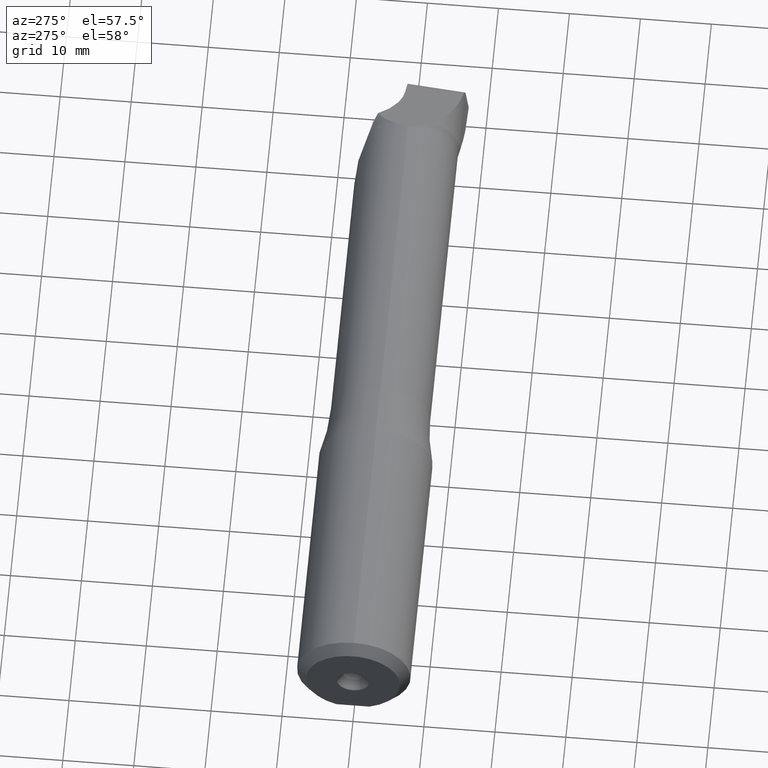
[diagram: clean part render]
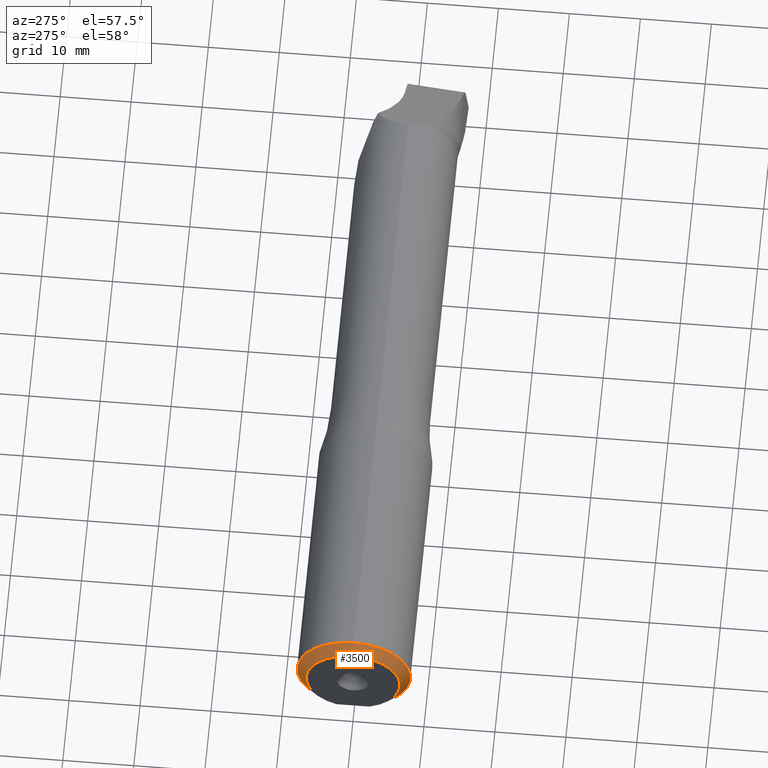
[diagram: same view with one face highlighted and labeled with its STEP entity id]
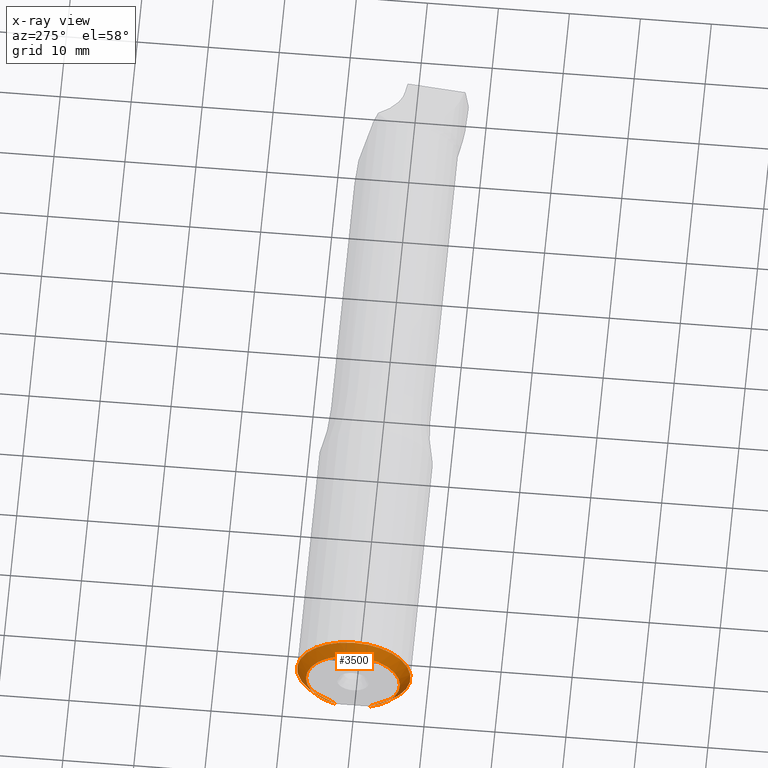
[diagram: x-ray of the same camera — body ghosted, the highlighted face saturated]
A machine part, auxiliary view. The second image highlights one B-rep face of the part: STEP entity #3500.
The next image is the same camera in x-ray: the body ghosted, the highlighted face saturated — about 0% of this face is hidden behind the body in this view.
In plain terms, the highlighted conical surface has half-angle 45 deg.
Its self-contained STEP definition (entity closure, byte-faithful):
#5 = DIRECTION ( 'NONE',  ( -1.000000000000000000, -0.0000000000000000000, -0.0000000000000000000 ) ) ;
#138 = ORIENTED_EDGE ( 'NONE', *, *, #388, .T. ) ;
#242 = DIRECTION ( 'NONE',  ( 0.0000000000000000000, 0.0000000000000000000, 1.000000000000000000 ) ) ;
#299 = EDGE_LOOP ( 'NONE', ( #2361, #2005, #2590, #138 ) ) ;
#317 = CARTESIAN_POINT ( 'NONE',  ( 1.102759812682804700, 4.624903649330746300, -6.200000000000000200 ) ) ;
#350 = AXIS2_PLACEMENT_3D ( 'NONE', #2202, #1939, #3059 ) ;
#352 = CARTESIAN_POINT ( 'NONE',  ( 1.375000000000003100, 5.055689863905843900, -6.199999999999999300 ) ) ;
#388 = EDGE_CURVE ( 'NONE', #1343, #2328, #3696, .T. ) ;
#830 = AXIS2_PLACEMENT_3D ( 'NONE', #1710, #5, #1990 ) ;
#892 = CARTESIAN_POINT ( 'NONE',  ( 0.3783296866794275100, 3.279715641321737900, -6.199999999999998400 ) ) ;
#950 = AXIS2_PLACEMENT_3D ( 'NONE', #3278, #3086, #242 ) ;
#1023 = FACE_OUTER_BOUND ( 'NONE', #299, .T. ) ;
#1123 = EDGE_CURVE ( 'NONE', #1343, #2196, #3292, .T. ) ;
#1172 = CARTESIAN_POINT ( 'NONE',  ( 2.331254678718171000E-016, 2.334657362441027400, -6.199999999999999300 ) ) ;
#1343 = VERTEX_POINT ( 'NONE', #3330 ) ;
#1591 = EDGE_CURVE ( 'NONE', #1686, #2196, #2299, .T. ) ;
#1627 = CARTESIAN_POINT ( 'NONE',  ( 1.374999999999999600, -5.055689863905816300, -6.199999999999999300 ) ) ;
#1686 = VERTEX_POINT ( 'NONE', #1797 ) ;
#1710 = CARTESIAN_POINT ( 'NONE',  ( 0.0000000000000000000, 0.0000000000000000000, 0.0000000000000000000 ) ) ;
#1713 = CARTESIAN_POINT ( 'NONE',  ( 1.374999999999999600, -5.055689863905816300, -6.199999999999999300 ) ) ;
#1797 = CARTESIAN_POINT ( 'NONE',  ( 1.375000000000003100, 5.055689863905843900, -6.199999999999999300 ) ) ;
#1939 = DIRECTION ( 'NONE',  ( 1.000000000000000000, 0.0000000000000000000, 0.0000000000000000000 ) ) ;
#1990 = DIRECTION ( 'NONE',  ( 0.0000000000000000000, 0.0000000000000000000, 1.000000000000000000 ) ) ;
#2005 = ORIENTED_EDGE ( 'NONE', *, *, #1591, .T. ) ;
#2049 = CARTESIAN_POINT ( 'NONE',  ( 0.1697391835517378400, 2.816322085119872500, -6.200000000000002000 ) ) ;
#2063 = CARTESIAN_POINT ( 'NONE',  ( 0.8443957044948021700, 4.183512899218845500, -6.199999999999999300 ) ) ;
#2117 = CARTESIAN_POINT ( 'NONE',  ( 2.331254678718171000E-016, 2.334657362441027400, -6.199999999999999300 ) ) ;
#2196 = VERTEX_POINT ( 'NONE', #2117 ) ;
#2202 = CARTESIAN_POINT ( 'NONE',  ( 1.374999999999999600, 0.0000000000000000000, 0.0000000000000000000 ) ) ;
#2299 = B_SPLINE_CURVE_WITH_KNOTS ( 'NONE', 3,
 ( #352, #317, #2063, #892, #2049, #1172 ),
 .UNSPECIFIED., .F., .F.,
 ( 4, 2, 4 ),
 ( 0.01498964033621597900, 0.01651543360208722700, 0.01804122686795847300 ),
 .UNSPECIFIED. ) ;
#2315 = CARTESIAN_POINT ( 'NONE',  ( 1.103883033249896100, -4.626681006086920800, -6.200000000000000200 ) ) ;
#2327 = CARTESIAN_POINT ( 'NONE',  ( 0.3815471660728578800, -3.286497594889465000, -6.200000000000001100 ) ) ;
#2328 = VERTEX_POINT ( 'NONE', #1627 ) ;
#2361 = ORIENTED_EDGE ( 'NONE', *, *, #3371, .T. ) ;
#2440 = CIRCLE ( 'NONE', #950, 8.000000000000000000 ) ;
#2585 = CARTESIAN_POINT ( 'NONE',  ( 0.1714315222812200500, -2.821124393271454700, -6.199999999999999300 ) ) ;
#2590 = ORIENTED_EDGE ( 'NONE', *, *, #1123, .F. ) ;
#2828 = CONICAL_SURFACE ( 'NONE', #350, 8.000000000000000000, 0.7853981633974463900 ) ;
#3059 = DIRECTION ( 'NONE',  ( 0.0000000000000000000, 0.0000000000000000000, -1.000000000000000000 ) ) ;
#3086 = DIRECTION ( 'NONE',  ( -1.000000000000000000, -0.0000000000000000000, -0.0000000000000000000 ) ) ;
#3278 = CARTESIAN_POINT ( 'NONE',  ( 1.374999999999999600, 0.0000000000000000000, 0.0000000000000000000 ) ) ;
#3292 = CIRCLE ( 'NONE', #830, 6.625000000000006200 ) ;
#3330 = CARTESIAN_POINT ( 'NONE',  ( 0.0000000000000000000, -2.334657362441027400, -6.199999999999999300 ) ) ;
#3371 = EDGE_CURVE ( 'NONE', #2328, #1686, #2440, .T. ) ;
#3440 = CARTESIAN_POINT ( 'NONE',  ( 0.8475333585746149800, -4.189047391212121800, -6.200000000000000200 ) ) ;
#3476 = CARTESIAN_POINT ( 'NONE',  ( 0.0000000000000000000, -2.334657362441027400, -6.199999999999999300 ) ) ;
#3500 = ADVANCED_FACE ( 'NONE', ( #1023 ), #2828, .T. ) ;
#3696 = B_SPLINE_CURVE_WITH_KNOTS ( 'NONE', 3,
 ( #3476, #2585, #2327, #3440, #2315, #1713 ),
 .UNSPECIFIED., .F., .F.,
 ( 4, 2, 4 ),
 ( 0.02280706587486892200, 0.02434375454163164800, 0.02588044320839437400 ),
 .UNSPECIFIED. ) ;